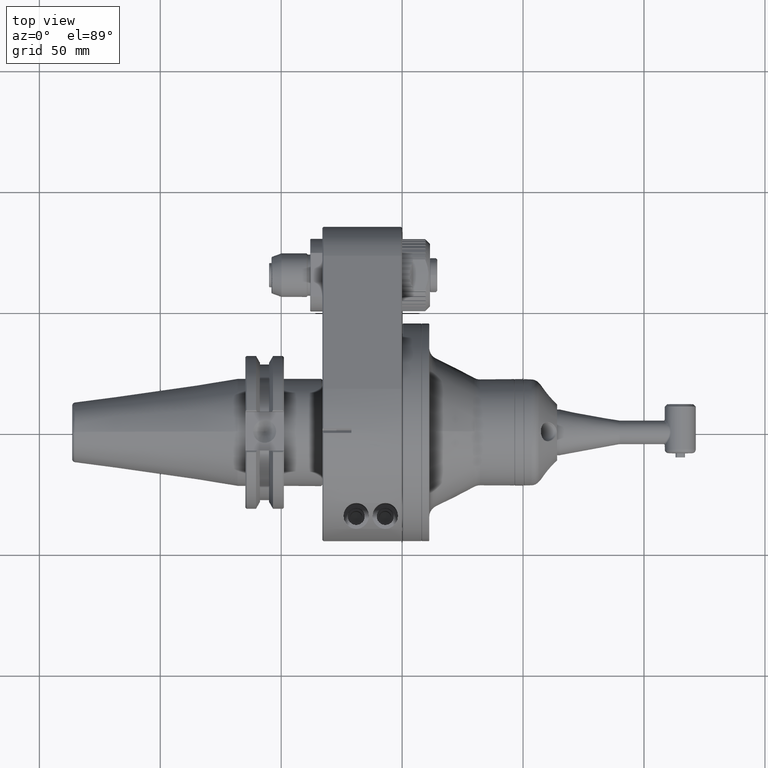
[diagram: clean part render]
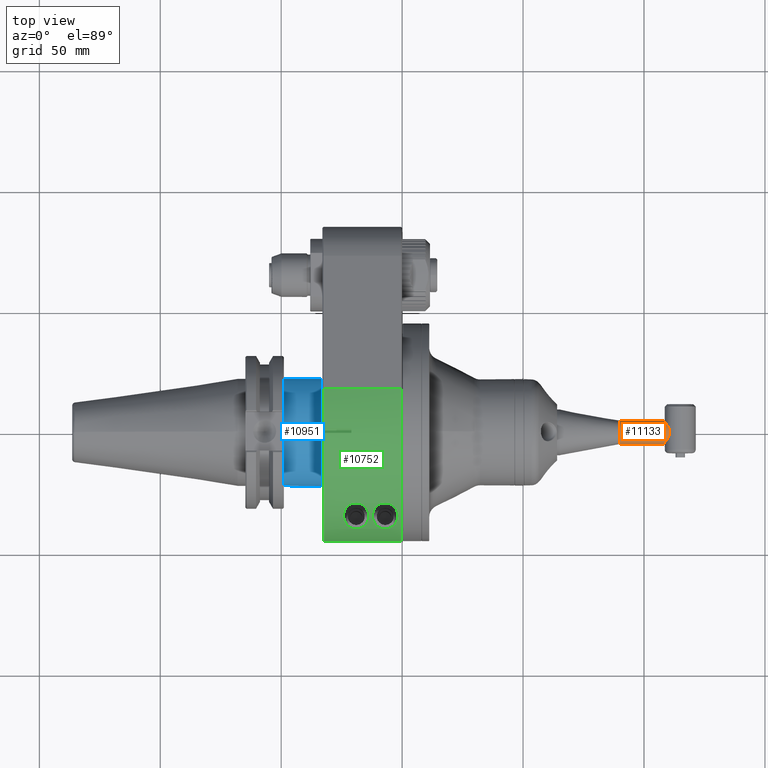
[diagram: same view with three faces highlighted in distinct colors, each labeled with its STEP entity id]
A machine part, top view with three faces highlighted in distinct colors.
Their STEP definitions:

[orange] entity #11133 — the highlighted cylindrical surface (bore or boss wall) has radius 4.85 mm, axis along (1, 0, -0).
#195=B_SPLINE_CURVE_WITH_KNOTS('',3,(#20891,#20892,#20893,#20894,#20895,
#20896,#20897,#20898,#20899,#20900,#20901,#20902,#20903,#20904,#20905,#20906,
#20907,#20908,#20909,#20910,#20911,#20912,#20913,#20914,#20915,#20916,#20917,
#20918,#20919,#20920,#20921,#20922,#20923,#20924,#20925,#20926,#20927,#20928,
#20929,#20930,#20931,#20932,#20933,#20934,#20935,#20936,#20937,#20938,#20939,
#20940,#20941,#20942,#20943,#20944,#20945,#20946,#20947,#20948,#20949,#20950,
#20951,#20952,#20953,#20954,#20955,#20956,#20957,#20958,#20959,#20960,#20961,
#20962,#20963,#20964,#20965,#20966,#20967,#20968,#20969,#20970,#20971,#20972,
#20973,#20974,#20975,#20976,#20977,#20978,#20979,#20980,#20981,#20982,#20983,
#20984,#20985,#20986,#20987,#20988,#20989,#20990,#20991,#20992,#20993,#20994,
#20995,#20996,#20997,#20998,#20999,#21000,#21001,#21002,#21003,#21004,#21005,
#21006,#21007,#21008,#21009,#21010,#21011,#21012,#21013,#21014,#21015,#21016,
#21017,#21018,#21019,#21020,#21021,#21022,#21023,#21024,#21025,#21026,#21027,
#21028,#21029,#21030,#21031,#21032,#21033,#21034,#21035,#21036,#21037,#21038,
#21039,#21040,#21041,#21042,#21043,#21044,#21045,#21046,#21047,#21048,#21049,
#21050,#21051,#21052,#21053,#21054,#21055,#21056,#21057,#21058,#21059,#21060,
#21061,#21062,#21063,#21064,#21065,#21066,#21067,#21068,#21069,#21070,#21071,
#21072,#21073,#21074,#21075,#21076,#21077,#21078,#21079,#21080,#21081,#21082,
#21083,#21084,#21085,#21086,#21087,#21088,#21089,#21090,#21091,#21092,#21093,
#21094,#21095,#21096,#21097,#21098,#21099,#21100,#21101,#21102,#21103,#21104,
#21105,#21106,#21107,#21108,#21109,#21110,#21111,#21112,#21113,#21114,#21115,
#21116,#21117,#21118,#21119,#21120,#21121,#21122),.UNSPECIFIED.,.F.,.F.,
(4,3,3,3,3,3,3,3,3,3,3,3,3,3,3,3,3,3,3,3,3,3,3,3,3,3,3,3,3,3,3,3,3,3,3,
3,3,3,3,3,3,3,3,3,3,3,3,3,3,3,3,3,3,3,3,3,3,3,3,3,3,3,3,3,3,3,3,3,3,3,3,
3,3,3,3,3,3,4),(0.,0.01538461538462,0.03076923076923,0.04615384615385,0.06153846153846,
0.07692307692308,0.09230769230769,0.1076923076923,0.1230769230769,0.1384615384615,
0.1538461538462,0.1692307692308,0.1846153846154,0.2,0.2153846153846,0.2307692307692,
0.2461538461538,0.260158438914003,0.2615384615385,0.274442780658334,0.2769230769231,
0.289194553073426,0.2923076923077,0.304479851039587,0.3076923076923,0.320422578438482,
0.3230769230769,0.337230330382975,0.3384615384615,0.3538461538462,0.3692307692308,
0.3846153846154,0.4,0.4153846153846,0.4307692307692,0.4461538461538,0.4615384615385,
0.4769230769231,0.4923076923077,0.5076923076923,0.5230769230769,0.5384615384615,
0.5538461538462,0.5692307692308,0.5846153846154,0.6,0.6153846153846,0.6307692307692,
0.6461538461538,0.6615384615385,0.675702102305184,0.6769230769231,0.689658797195751,
0.6923076923077,0.704479482115262,0.7076923076923,0.71997338106672,0.7230769230769,
0.735965087058411,0.7384615384615,0.752449438870395,0.7538461538462,0.7692307692308,
0.7846153846154,0.8,0.8153846153846,0.8307692307692,0.8461538461538,0.8615384615385,
0.8769230769231,0.8923076923077,0.9076923076923,0.9230769230769,0.9384615384615,
0.9538461538462,0.9692307692308,0.9846153846154,1.),.UNSPECIFIED.);
#196=B_SPLINE_CURVE_WITH_KNOTS('',3,(#21123,#21124,#21125,#21126,#21127,
#21128,#21129,#21130,#21131,#21132,#21133,#21134,#21135,#21136,#21137,#21138,
#21139,#21140,#21141,#21142,#21143,#21144,#21145,#21146,#21147,#21148,#21149,
#21150,#21151,#21152,#21153,#21154,#21155,#21156,#21157,#21158,#21159,#21160,
#21161,#21162,#21163,#21164,#21165,#21166,#21167,#21168,#21169,#21170,#21171,
#21172,#21173,#21174,#21175,#21176,#21177,#21178,#21179,#21180,#21181,#21182,
#21183,#21184,#21185,#21186,#21187,#21188,#21189,#21190,#21191,#21192,#21193,
#21194,#21195,#21196,#21197,#21198,#21199,#21200,#21201,#21202,#21203,#21204,
#21205,#21206,#21207,#21208,#21209,#21210,#21211,#21212,#21213,#21214,#21215,
#21216,#21217,#21218,#21219,#21220,#21221,#21222,#21223,#21224,#21225,#21226,
#21227,#21228,#21229,#21230,#21231,#21232,#21233,#21234,#21235,#21236,#21237,
#21238,#21239,#21240,#21241,#21242,#21243,#21244,#21245,#21246,#21247,#21248,
#21249,#21250,#21251,#21252,#21253,#21254,#21255,#21256,#21257,#21258,#21259,
#21260,#21261,#21262,#21263,#21264,#21265,#21266,#21267,#21268,#21269,#21270,
#21271,#21272,#21273,#21274,#21275,#21276,#21277,#21278,#21279,#21280,#21281,
#21282,#21283,#21284,#21285,#21286,#21287,#21288,#21289,#21290,#21291,#21292,
#21293,#21294,#21295,#21296,#21297,#21298,#21299,#21300,#21301,#21302,#21303,
#21304,#21305,#21306,#21307,#21308,#21309,#21310,#21311,#21312,#21313,#21314,
#21315,#21316,#21317,#21318,#21319,#21320,#21321,#21322,#21323,#21324,#21325,
#21326,#21327,#21328,#21329,#21330,#21331,#21332,#21333,#21334,#21335,#21336,
#21337,#21338,#21339,#21340,#21341,#21342,#21343,#21344,#21345,#21346,#21347,
#21348,#21349,#21350,#21351,#21352,#21353,#21354),.UNSPECIFIED.,.F.,.F.,
(4,3,3,3,3,3,3,3,3,3,3,3,3,3,3,3,3,3,3,3,3,3,3,3,3,3,3,3,3,3,3,3,3,3,3,
3,3,3,3,3,3,3,3,3,3,3,3,3,3,3,3,3,3,3,3,3,3,3,3,3,3,3,3,3,3,3,3,3,3,3,3,
3,3,3,3,3,3,4),(0.,0.01538461538462,0.03076923076923,0.04615384615385,0.06153846153846,
0.07692307692308,0.09230769230769,0.1076923076923,0.1230769230769,0.1384615384615,
0.1538461538462,0.1692307692308,0.1846153846154,0.2,0.2153846153846,0.2307692307692,
0.2461538461538,0.260158431636471,0.2615384615385,0.274442760630202,0.2769230769231,
0.289194598271344,0.2923076923077,0.304479899083794,0.3076923076923,0.320422274181219,
0.3230769230769,0.337230405142015,0.3384615384615,0.3538461538462,0.3692307692308,
0.3846153846154,0.4,0.4153846153846,0.4307692307692,0.4461538461538,0.4615384615385,
0.4769230769231,0.4923076923077,0.5076923076923,0.5230769230769,0.5384615384615,
0.5538461538462,0.5692307692308,0.5846153846154,0.6,0.6153846153846,0.6307692307692,
0.6461538461538,0.6615384615385,0.675702047880897,0.6769230769231,0.689658777790417,
0.6923076923077,0.704479540780857,0.7076923076923,0.719973348981994,0.7230769230769,
0.735964990526174,0.7384615384615,0.752449503331708,0.7538461538462,0.7692307692308,
0.7846153846154,0.8,0.8153846153846,0.8307692307692,0.8461538461538,0.8615384615385,
0.8769230769231,0.8923076923077,0.9076923076923,0.9230769230769,0.9384615384615,
0.9538461538462,0.9692307692308,0.9846153846154,1.),.UNSPECIFIED.);
#1035=CIRCLE('',#12394,4.85);
#1270=CYLINDRICAL_SURFACE('',#12395,4.85);
#1848=FACE_OUTER_BOUND('',#2567,.T.);
#2567=EDGE_LOOP('',(#9900,#9901,#9902,#9903,#9904));
#3439=LINE('',#21355,#4276);
#4276=VECTOR('',#15536,4.85);
#5282=VERTEX_POINT('',#20886);
#5283=VERTEX_POINT('',#20889);
#5284=VERTEX_POINT('',#20890);
#6858=EDGE_CURVE('',#5282,#5282,#1035,.T.);
#6859=EDGE_CURVE('',#5283,#5284,#195,.T.);
#6860=EDGE_CURVE('',#5284,#5283,#196,.T.);
#6861=EDGE_CURVE('',#5284,#5282,#3439,.T.);
#9900=ORIENTED_EDGE('',*,*,#6859,.F.);
#9901=ORIENTED_EDGE('',*,*,#6860,.F.);
#9902=ORIENTED_EDGE('',*,*,#6861,.T.);
#9903=ORIENTED_EDGE('',*,*,#6858,.F.);
#9904=ORIENTED_EDGE('',*,*,#6861,.F.);
#11133=ADVANCED_FACE('',(#1848),#1270,.T.);
#12394=AXIS2_PLACEMENT_3D('',#20887,#15532,#15533);
#12395=AXIS2_PLACEMENT_3D('',#20888,#15534,#15535);
#15532=DIRECTION('center_axis',(0.,-1.,0.));
#15533=DIRECTION('ref_axis',(-1.,0.,0.));
#15534=DIRECTION('center_axis',(0.,1.,0.));
#15535=DIRECTION('ref_axis',(0.,0.,-1.));
#15536=DIRECTION('',(0.,-1.,0.));
#20886=CARTESIAN_POINT('',(5.93953697586466E-16,114.9,4.85));
#20887=CARTESIAN_POINT('Origin',(0.,114.9,0.));
#20888=CARTESIAN_POINT('Origin',(0.,120.2,0.));
#20889=CARTESIAN_POINT('',(0.,133.1,-4.85));
#20890=CARTESIAN_POINT('',(0.,133.1,4.85));
#20891=CARTESIAN_POINT('Ctrl Pts',(0.,133.1,-4.85));
#20892=CARTESIAN_POINT('Ctrl Pts',(-0.07161185774808,133.1000001042,-4.85));
#20893=CARTESIAN_POINT('Ctrl Pts',(-0.143368031393527,133.1013578575,-4.84841334298735));
#20894=CARTESIAN_POINT('Ctrl Pts',(-0.215174492267225,133.104083957267,
-4.84522444659456));
#20895=CARTESIAN_POINT('Ctrl Pts',(-0.286980953140876,133.106810057033,
-4.84203555020177));
#20896=CARTESIAN_POINT('Ctrl Pts',(-0.358837760061256,133.110904503267,
-4.83724577257871));
#20897=CARTESIAN_POINT('Ctrl Pts',(-0.430741154153564,133.116379485567,
-4.83083450949403));
#20898=CARTESIAN_POINT('Ctrl Pts',(-0.502644548245918,133.121854467867,
-4.82442324640936));
#20899=CARTESIAN_POINT('Ctrl Pts',(-0.57459453063665,133.128709986233,-4.81639063571277));
#20900=CARTESIAN_POINT('Ctrl Pts',(-0.646593330334119,133.13696389515,-4.80670542733455));
#20901=CARTESIAN_POINT('Ctrl Pts',(-0.718592130031542,133.145217804067,
-4.79702021895634));
#20902=CARTESIAN_POINT('Ctrl Pts',(-0.790639792272416,133.154870103533,
-4.78568274561449));
#20903=CARTESIAN_POINT('Ctrl Pts',(-0.862755494920035,133.165948141983,
-4.77264632630423));
#20904=CARTESIAN_POINT('Ctrl Pts',(-0.934871197567701,133.177026180433,
-4.75960990699397));
#20905=CARTESIAN_POINT('Ctrl Pts',(-1.00705490698295,133.189529957867,-4.74487438019626));
#20906=CARTESIAN_POINT('Ctrl Pts',(-1.07930769844282,133.203491596233,-4.72838184711028));
#20907=CARTESIAN_POINT('Ctrl Pts',(-1.15156048990263,133.2174532346,-4.71188931402432));
#20908=CARTESIAN_POINT('Ctrl Pts',(-1.22388237313769,133.2328727339,-4.69363980269841));
#20909=CARTESIAN_POINT('Ctrl Pts',(-1.2962673319943,133.249786896267,-4.67356298812848));
#20910=CARTESIAN_POINT('Ctrl Pts',(-1.36865229085091,133.266701058633,-4.65348617355854));
#20911=CARTESIAN_POINT('Ctrl Pts',(-1.44110032085099,133.285109884067,-4.63158204554287));
#20912=CARTESIAN_POINT('Ctrl Pts',(-1.51359384186183,133.305052732867,-4.60776883989181));
#20913=CARTESIAN_POINT('Ctrl Pts',(-1.58608736287262,133.324995581667,-4.58395563424077));
#20914=CARTESIAN_POINT('Ctrl Pts',(-1.65862636205225,133.346472453833,-4.55823331247208));
#20915=CARTESIAN_POINT('Ctrl Pts',(-1.7311781747427,133.369522419117,-4.5305101398512));
#20916=CARTESIAN_POINT('Ctrl Pts',(-1.80372998743315,133.3925723844,-4.50278696723032));
#20917=CARTESIAN_POINT('Ctrl Pts',(-1.876294586499,133.4171954428,-4.47306287458941));
#20918=CARTESIAN_POINT('Ctrl Pts',(-1.94882079481534,133.443426415667,-4.44123828562433));
#20919=CARTESIAN_POINT('Ctrl Pts',(-2.02134700313216,133.469657388533,-4.40941369665903));
#20920=CARTESIAN_POINT('Ctrl Pts',(-2.09383477161619,133.497496275867,-4.37548850216877));
#20921=CARTESIAN_POINT('Ctrl Pts',(-2.16621082799804,133.526968466834,-4.33935832222508));
#20922=CARTESIAN_POINT('Ctrl Pts',(-2.23858688437943,133.5564406578,-4.30322814228161));
#20923=CARTESIAN_POINT('Ctrl Pts',(-2.31085112935545,133.5875461524,-4.26489278307486));
#20924=CARTESIAN_POINT('Ctrl Pts',(-2.38290270087747,133.62029333945,-4.2242484205064));
#20925=CARTESIAN_POINT('Ctrl Pts',(-2.45495427239949,133.6530405265,-4.18360405793795));
#20926=CARTESIAN_POINT('Ctrl Pts',(-2.52679297942987,133.687429406,-4.14065036006092));
#20927=CARTESIAN_POINT('Ctrl Pts',(-2.59828329782886,133.723440593033,-4.09529289602387));
#20928=CARTESIAN_POINT('Ctrl Pts',(-2.66977361622785,133.759451780067,-4.04993543198683));
#20929=CARTESIAN_POINT('Ctrl Pts',(-2.74091522837158,133.797085274633,-4.00217370847725));
#20930=CARTESIAN_POINT('Ctrl Pts',(-2.81153197543185,133.836280526883,-3.9519347098762));
#20931=CARTESIAN_POINT('Ctrl Pts',(-2.88214872249213,133.875475779133,-3.90169571127514));
#20932=CARTESIAN_POINT('Ctrl Pts',(-2.95224010074726,133.916232789067,-3.84897874131232));
#20933=CARTESIAN_POINT('Ctrl Pts',(-3.02158419093544,133.958433569967,-3.7937486707858));
#20934=CARTESIAN_POINT('Ctrl Pts',(-3.09092828112362,134.000634350867,-3.73851860025928));
#20935=CARTESIAN_POINT('Ctrl Pts',(-3.15952424551999,134.044278902733,-3.68077439349942));
#20936=CARTESIAN_POINT('Ctrl Pts',(-3.22709666122393,134.089169846167,-3.62054514391374));
#20937=CARTESIAN_POINT('Ctrl Pts',(-3.29466907692787,134.1340607896,-3.56031589432806));
#20938=CARTESIAN_POINT('Ctrl Pts',(-3.36121668674719,134.1801981246,-3.49760020716869));
#20939=CARTESIAN_POINT('Ctrl Pts',(-3.42640854177282,134.227282522066,-3.43252450899717));
#20940=CARTESIAN_POINT('Ctrl Pts',(-3.48575259153244,134.270143379838,-3.37328619665103));
#20941=CARTESIAN_POINT('Ctrl Pts',(-3.54397238386394,134.313789014685,-3.31209160023624));
#20942=CARTESIAN_POINT('Ctrl Pts',(-3.60078192306945,134.35790489918,-3.24913366030028));
#20943=CARTESIAN_POINT('Ctrl Pts',(-3.60637997584637,134.362252110109,-3.24292973970144));
#20944=CARTESIAN_POINT('Ctrl Pts',(-3.61196436074446,134.366603887291,-3.2367087292608));
#20945=CARTESIAN_POINT('Ctrl Pts',(-3.61753482159174,134.370959929767,-3.23047083481205));
#20946=CARTESIAN_POINT('Ctrl Pts',(-3.66962310126327,134.411692422999,-3.17214151529676));
#20947=CARTESIAN_POINT('Ctrl Pts',(-3.72049116071822,134.452797862969,-3.11233250747917));
#20948=CARTESIAN_POINT('Ctrl Pts',(-3.76990143950404,134.493962568554,-3.05128548917097));
#20949=CARTESIAN_POINT('Ctrl Pts',(-3.7793984248758,134.501874699722,-3.03955184479355));
#20950=CARTESIAN_POINT('Ctrl Pts',(-3.78884166896479,134.509789020363,-3.0277725684321));
#20951=CARTESIAN_POINT('Ctrl Pts',(-3.79822965092444,134.5177033031,-3.01594952193142));
#20952=CARTESIAN_POINT('Ctrl Pts',(-3.84467748796477,134.556859888238,-2.95745399653056));
#20953=CARTESIAN_POINT('Ctrl Pts',(-3.8897696059441,134.596015545549,-2.89788403221456));
#20954=CARTESIAN_POINT('Ctrl Pts',(-3.933313891563,134.634860240751,-2.83752389072542));
#20955=CARTESIAN_POINT('Ctrl Pts',(-3.9443606003964,134.644714714915,-2.82221118324391));
#20956=CARTESIAN_POINT('Ctrl Pts',(-3.95530790856184,134.654549176137,-2.80684777108298));
#20957=CARTESIAN_POINT('Ctrl Pts',(-3.96615312368793,134.6643585625,-2.79143858959147));
#20958=CARTESIAN_POINT('Ctrl Pts',(-4.00855716348895,134.702712583598,-2.73118975748716));
#20959=CARTESIAN_POINT('Ctrl Pts',(-4.04939727453135,134.740683271338,-2.67023866681919));
#20960=CARTESIAN_POINT('Ctrl Pts',(-4.08853188163589,134.77796709673,-2.60890916914462));
#20961=CARTESIAN_POINT('Ctrl Pts',(-4.09886022451356,134.78780698426,-2.59272318626747));
#20962=CARTESIAN_POINT('Ctrl Pts',(-4.10907002509522,134.797599029821,-2.57651097530154));
#20963=CARTESIAN_POINT('Ctrl Pts',(-4.1191592236359,134.807337653733,-2.56027875246725));
#20964=CARTESIAN_POINT('Ctrl Pts',(-4.15914053480049,134.845929713489,-2.49595396498153));
#20965=CARTESIAN_POINT('Ctrl Pts',(-4.19722449144042,134.883682858149,-2.43131299501783));
#20966=CARTESIAN_POINT('Ctrl Pts',(-4.23333629793002,134.920304009993,-2.36672004863866));
#20967=CARTESIAN_POINT('Ctrl Pts',(-4.24086584556105,134.927939759459,-2.35325199722642));
#20968=CARTESIAN_POINT('Ctrl Pts',(-4.24830982643351,134.935526295565,-2.33978608869202));
#20969=CARTESIAN_POINT('Ctrl Pts',(-4.25566783414107,134.943060961617,-2.32632570493839));
#20970=CARTESIAN_POINT('Ctrl Pts',(-4.29490195564096,134.983237054802,-2.25455269889995));
#20971=CARTESIAN_POINT('Ctrl Pts',(-4.33168781040951,135.021938378656,-2.1829360100199));
#20972=CARTESIAN_POINT('Ctrl Pts',(-4.36605429776292,135.058890127896,-2.11188775009136));
#20973=CARTESIAN_POINT('Ctrl Pts',(-4.36904384621193,135.062104568857,-2.1057072460122));
#20974=CARTESIAN_POINT('Ctrl Pts',(-4.37201511905776,135.065305770264,-2.09953104480939));
#20975=CARTESIAN_POINT('Ctrl Pts',(-4.37496815371306,135.068493551216,-2.09335941825491));
#20976=CARTESIAN_POINT('Ctrl Pts',(-4.41186792978013,135.1083266101,-2.01624158375177));
#20977=CARTESIAN_POINT('Ctrl Pts',(-4.44591742696967,135.1460642177,-1.93983943660637));
#20978=CARTESIAN_POINT('Ctrl Pts',(-4.47728788978575,135.181533569134,-1.8645088232502));
#20979=CARTESIAN_POINT('Ctrl Pts',(-4.50865835260163,135.217002920567,-1.78917820989452));
#20980=CARTESIAN_POINT('Ctrl Pts',(-4.53735258005193,135.250204015833,-1.71492031548042));
#20981=CARTESIAN_POINT('Ctrl Pts',(-4.56361960864863,135.281114728067,-1.64191232030145));
#20982=CARTESIAN_POINT('Ctrl Pts',(-4.58988663724533,135.3120254403,-1.56890432512249));
#20983=CARTESIAN_POINT('Ctrl Pts',(-4.61372829825292,135.3406457695,-1.49714690744443));
#20984=CARTESIAN_POINT('Ctrl Pts',(-4.63541971760306,135.36705455415,-1.42666886194968));
#20985=CARTESIAN_POINT('Ctrl Pts',(-4.65711113695319,135.3934633388,-1.35619081645494));
#20986=CARTESIAN_POINT('Ctrl Pts',(-4.67665323064643,135.4176605789,-1.28699243932592));
#20987=CARTESIAN_POINT('Ctrl Pts',(-4.69430970279334,135.439777114383,-1.21899811905529));
#20988=CARTESIAN_POINT('Ctrl Pts',(-4.71196617494025,135.461893649867,-1.15100379878466));
#20989=CARTESIAN_POINT('Ctrl Pts',(-4.72773727923914,135.481929480733,-1.08421360887164));
#20990=CARTESIAN_POINT('Ctrl Pts',(-4.74185396368543,135.500030277367,-1.01848956159638));
#20991=CARTESIAN_POINT('Ctrl Pts',(-4.75597064813171,135.518131074,-0.952765514321129));
#20992=CARTESIAN_POINT('Ctrl Pts',(-4.76843285297271,135.5342968364,-0.888107599744449));
#20993=CARTESIAN_POINT('Ctrl Pts',(-4.77943091968729,135.548665859733,-0.824342212880708));
#20994=CARTESIAN_POINT('Ctrl Pts',(-4.79042898640187,135.563034883067,-0.760576826016967));
#20995=CARTESIAN_POINT('Ctrl Pts',(-4.79996271644838,135.575607167333,-0.69770393366836));
#20996=CARTESIAN_POINT('Ctrl Pts',(-4.80818041024244,135.586500770683,-0.635532172718893));
#20997=CARTESIAN_POINT('Ctrl Pts',(-4.81639810403656,135.597394374033,-0.573360411769022));
#20998=CARTESIAN_POINT('Ctrl Pts',(-4.82329953372581,135.606609296467,-0.511889751853464));
#20999=CARTESIAN_POINT('Ctrl Pts',(-4.82899260596585,135.61423680185,-0.450921735478751));
#21000=CARTESIAN_POINT('Ctrl Pts',(-4.83468567820585,135.621864307233,-0.389953719104435));
#21001=CARTESIAN_POINT('Ctrl Pts',(-4.83917020777035,135.627904395567,-0.32948832817836));
#21002=CARTESIAN_POINT('Ctrl Pts',(-4.84251630914182,135.632418751,-0.269324703091792));
#21003=CARTESIAN_POINT('Ctrl Pts',(-4.84586241051329,135.636933106433,-0.209161078005224));
#21004=CARTESIAN_POINT('Ctrl Pts',(-4.84806996484165,135.639921728967,-0.149299211235721));
#21005=CARTESIAN_POINT('Ctrl Pts',(-4.84917343206287,135.641415615233,-0.0895378454932703));
#21006=CARTESIAN_POINT('Ctrl Pts',(-4.8502768992841,135.6429095015,-0.0297764797508202));
#21007=CARTESIAN_POINT('Ctrl Pts',(-4.850276237934,135.6429086515,0.0298843867536374));
#21008=CARTESIAN_POINT('Ctrl Pts',(-4.84917143540379,135.641413042867,0.0896459149319333));
#21009=CARTESIAN_POINT('Ctrl Pts',(-4.84806663287357,135.639917434233,0.149407443110229));
#21010=CARTESIAN_POINT('Ctrl Pts',(-4.84585773094497,135.636927066967,0.209269634708006));
#21011=CARTESIAN_POINT('Ctrl Pts',(-4.84251024210262,135.6324109007,0.269433767614952));
#21012=CARTESIAN_POINT('Ctrl Pts',(-4.83916275326027,135.627894734433,0.329597900521898));
#21013=CARTESIAN_POINT('Ctrl Pts',(-4.83467679393104,135.621852769167,0.390063982178279));
#21014=CARTESIAN_POINT('Ctrl Pts',(-4.82898224340889,135.614223325183,0.451032695978474));
#21015=CARTESIAN_POINT('Ctrl Pts',(-4.82328769288671,135.6065938812,0.512001409779064));
#21016=CARTESIAN_POINT('Ctrl Pts',(-4.81638473993658,135.5973769585,0.573472774122686));
#21017=CARTESIAN_POINT('Ctrl Pts',(-4.80816544960452,135.586481282767,0.63564534862562));
#21018=CARTESIAN_POINT('Ctrl Pts',(-4.79994615927251,135.575585607033,0.69781792312815));
#21019=CARTESIAN_POINT('Ctrl Pts',(-4.7904107524497,135.563011178267,0.760691737118967));
#21020=CARTESIAN_POINT('Ctrl Pts',(-4.7794109947517,135.548640048383,0.824457726779569));
#21021=CARTESIAN_POINT('Ctrl Pts',(-4.7684112370537,135.5342689185,0.888223716440171));
#21022=CARTESIAN_POINT('Ctrl Pts',(-4.75594732196756,135.5181010875,0.952881914282058));
#21023=CARTESIAN_POINT('Ctrl Pts',(-4.74182912750898,135.499998561467,1.01860518627551));
#21024=CARTESIAN_POINT('Ctrl Pts',(-4.72771093305041,135.481896035433,1.08432845826897));
#21025=CARTESIAN_POINT('Ctrl Pts',(-4.71193852321312,135.461858814367,1.15111681512029));
#21026=CARTESIAN_POINT('Ctrl Pts',(-4.69428119452825,135.439741479583,1.21910789789027));
#21027=CARTESIAN_POINT('Ctrl Pts',(-4.67662386584338,135.4176241448,1.28709898066025));
#21028=CARTESIAN_POINT('Ctrl Pts',(-4.65708135883969,135.3934266963,1.35629271471589));
#21029=CARTESIAN_POINT('Ctrl Pts',(-4.63539041016742,135.3670188449,1.42676408187476));
#21030=CARTESIAN_POINT('Ctrl Pts',(-4.61369946149515,135.3406109935,1.49723544903362));
#21031=CARTESIAN_POINT('Ctrl Pts',(-4.58985918636342,135.3119927392,1.56898416267849));
#21032=CARTESIAN_POINT('Ctrl Pts',(-4.56359423868308,135.281084929317,1.64198283324115));
#21033=CARTESIAN_POINT('Ctrl Pts',(-4.53732929100273,135.250177119433,1.71498150380381));
#21034=CARTESIAN_POINT('Ctrl Pts',(-4.50863782924738,135.216979753967,1.78922944867883));
#21035=CARTESIAN_POINT('Ctrl Pts',(-4.47727070498145,135.181514483,1.86455008897988));
#21036=CARTESIAN_POINT('Ctrl Pts',(-4.44590358071532,135.146049212033,1.93987072928142));
#21037=CARTESIAN_POINT('Ctrl Pts',(-4.41185798803565,135.108316035567,2.01626287748583));
#21038=CARTESIAN_POINT('Ctrl Pts',(-4.37496269684864,135.068487753283,2.09337082266445));
#21039=CARTESIAN_POINT('Ctrl Pts',(-4.34099553957576,135.031820376913,2.16435922298892));
#21040=CARTESIAN_POINT('Ctrl Pts',(-4.30461098963234,134.993377247849,2.23595298813035));
#21041=CARTESIAN_POINT('Ctrl Pts',(-4.26577518637643,134.953433394914,2.30773959954218));
#21042=CARTESIAN_POINT('Ctrl Pts',(-4.26242735153489,134.949990040809,2.31392795406796));
#21043=CARTESIAN_POINT('Ctrl Pts',(-4.25906133287961,134.946535534408,2.32011774348234));
#21044=CARTESIAN_POINT('Ctrl Pts',(-4.25567712705303,134.9430700519,2.32630870485361));
#21045=CARTESIAN_POINT('Ctrl Pts',(-4.22037721326293,134.906922358745,2.3908852743304));
#21046=CARTESIAN_POINT('Ctrl Pts',(-4.18309418205117,134.869580451646,2.45558857762751));
#21047=CARTESIAN_POINT('Ctrl Pts',(-4.14389223733309,134.831337548197,2.5200510164222));
#21048=CARTESIAN_POINT('Ctrl Pts',(-4.13573864746777,134.823383428772,2.53345852187709));
#21049=CARTESIAN_POINT('Ctrl Pts',(-4.12750221767912,134.815390332605,2.54685566115782));
#21050=CARTESIAN_POINT('Ctrl Pts',(-4.11918379637747,134.807360897933,2.56023921766332));
#21051=CARTESIAN_POINT('Ctrl Pts',(-4.08096028380514,134.770465291664,2.62173724977779));
#21052=CARTESIAN_POINT('Ctrl Pts',(-4.04100147051386,134.732802418572,2.68294728536781));
#21053=CARTESIAN_POINT('Ctrl Pts',(-3.99943655256493,134.694675571152,2.74353918543322));
#21054=CARTESIAN_POINT('Ctrl Pts',(-3.98846521362422,134.684611733993,2.75953282395058));
#21055=CARTESIAN_POINT('Ctrl Pts',(-3.97738222440357,134.674515570283,2.77548351970757));
#21056=CARTESIAN_POINT('Ctrl Pts',(-3.96619049968857,134.664392657783,2.79138548398105));
#21057=CARTESIAN_POINT('Ctrl Pts',(-3.92340996613159,134.625697674755,2.8521709780445));
#21058=CARTESIAN_POINT('Ctrl Pts',(-3.87903681473859,134.586611848575,2.9122428611591));
#21059=CARTESIAN_POINT('Ctrl Pts',(-3.8332520161296,134.547445472292,2.97130930413485));
#21060=CARTESIAN_POINT('Ctrl Pts',(-3.82168176965533,134.53754776299,2.98623594625956));
#21061=CARTESIAN_POINT('Ctrl Pts',(-3.81002158776155,134.527644909596,3.00109852437444));
#21062=CARTESIAN_POINT('Ctrl Pts',(-3.79827482130899,134.517741919783,3.0158926343307));
#21063=CARTESIAN_POINT('Ctrl Pts',(-3.74949370225325,134.476617502523,3.07732854028954));
#21064=CARTESIAN_POINT('Ctrl Pts',(-3.69921590121627,134.435490732701,3.13758163803564));
#21065=CARTESIAN_POINT('Ctrl Pts',(-3.64767136425256,134.394674954947,3.19640323151067));
#21066=CARTESIAN_POINT('Ctrl Pts',(-3.63768713129206,134.386768894333,3.20779703824476));
#21067=CARTESIAN_POINT('Ctrl Pts',(-3.62765548651939,134.378874502176,3.2191372402393));
#21068=CARTESIAN_POINT('Ctrl Pts',(-3.61757826529603,134.370994055767,3.23042218517298));
#21069=CARTESIAN_POINT('Ctrl Pts',(-3.56111445162179,134.326839020579,3.29365301180028));
#21070=CARTESIAN_POINT('Ctrl Pts',(-3.5032166933622,134.283121810471,3.35514631920902));
#21071=CARTESIAN_POINT('Ctrl Pts',(-3.44416758248788,134.240156468812,3.41470491605638));
#21072=CARTESIAN_POINT('Ctrl Pts',(-3.43827143116744,134.235866308432,3.42065194039333));
#21073=CARTESIAN_POINT('Ctrl Pts',(-3.43236382680864,134.231583644445,3.4265797087753));
#21074=CARTESIAN_POINT('Ctrl Pts',(-3.42644506786695,134.2273087895,3.43248804759613));
#21075=CARTESIAN_POINT('Ctrl Pts',(-3.36125078596304,134.180221874633,3.4975675533614));
#21076=CARTESIAN_POINT('Ctrl Pts',(-3.29470101263377,134.134082407867,3.56028642302361));
#21077=CARTESIAN_POINT('Ctrl Pts',(-3.22712669364617,134.0891896403,3.62051837492317));
#21078=CARTESIAN_POINT('Ctrl Pts',(-3.15955237465857,134.044296872733,3.68075032682273));
#21079=CARTESIAN_POINT('Ctrl Pts',(-3.09095476737893,134.000650804367,3.73849675531897));
#21080=CARTESIAN_POINT('Ctrl Pts',(-3.02160927782547,133.958448741467,3.79372868984579));
#21081=CARTESIAN_POINT('Ctrl Pts',(-2.952263788272,133.916246678567,3.84896062437261));
#21082=CARTESIAN_POINT('Ctrl Pts',(-2.88217125393324,133.875488621133,3.90167910057267));
#21083=CARTESIAN_POINT('Ctrl Pts',(-2.81155356423129,133.83629249015,3.9519193508292));
#21084=CARTESIAN_POINT('Ctrl Pts',(-2.74093587452933,133.797096359167,4.00215960108574));
#21085=CARTESIAN_POINT('Ctrl Pts',(-2.66979353581342,133.759462154633,4.04992232519094));
#21086=CARTESIAN_POINT('Ctrl Pts',(-2.59830243815486,133.723450266033,4.09528075226577));
#21087=CARTESIAN_POINT('Ctrl Pts',(-2.52681134049629,133.687438377433,4.14063917934061));
#21088=CARTESIAN_POINT('Ctrl Pts',(-2.45497179834017,133.653048804767,4.1835937974823));
#21089=CARTESIAN_POINT('Ctrl Pts',(-2.38291933501112,133.620300944333,4.22423903713203));
#21090=CARTESIAN_POINT('Ctrl Pts',(-2.31086687168207,133.5875530839,4.26488427678176));
#21091=CARTESIAN_POINT('Ctrl Pts',(-2.23860167679388,133.5564469357,4.30322046766049));
#21092=CARTESIAN_POINT('Ctrl Pts',(-2.1662247564556,133.52697416675,4.33935136910102));
#21093=CARTESIAN_POINT('Ctrl Pts',(-2.09384783611684,133.4975013978,4.37548227054178));
#21094=CARTESIAN_POINT('Ctrl Pts',(-2.02135929127335,133.4696620081,4.40940807967653));
#21095=CARTESIAN_POINT('Ctrl Pts',(-1.94883234379303,133.443430581067,4.44123321790088));
#21096=CARTESIAN_POINT('Ctrl Pts',(-1.87630539631318,133.417199154033,4.47305835612501));
#21097=CARTESIAN_POINT('Ctrl Pts',(-1.80374009519779,133.392575689667,4.50278293222492));
#21098=CARTESIAN_POINT('Ctrl Pts',(-1.73118758276072,133.369525359367,4.53050654489044));
#21099=CARTESIAN_POINT('Ctrl Pts',(-1.65863507032365,133.346475029067,4.55823015755596));
#21100=CARTESIAN_POINT('Ctrl Pts',(-1.58609537295394,133.324997832833,4.5839528742053));
#21101=CARTESIAN_POINT('Ctrl Pts',(-1.51360123218138,133.30505471745,4.60776641225865));
#21102=CARTESIAN_POINT('Ctrl Pts',(-1.44110709140883,133.285111602067,4.631579950312));
#21103=CARTESIAN_POINT('Ctrl Pts',(-1.36865852105629,133.266702567533,4.65348435111728));
#21104=CARTESIAN_POINT('Ctrl Pts',(-1.29627299256577,133.2497882109,4.67356141809911));
#21105=CARTESIAN_POINT('Ctrl Pts',(-1.22388746407525,133.232873854267,4.69363848508094));
#21106=CARTESIAN_POINT('Ctrl Pts',(-1.15156498093301,133.217454175533,4.71188822484495));
#21107=CARTESIAN_POINT('Ctrl Pts',(-1.07931168228997,133.203492383233,4.72838093774945));
#21108=CARTESIAN_POINT('Ctrl Pts',(-1.00705838364692,133.189530590933,4.74487365065396));
#21109=CARTESIAN_POINT('Ctrl Pts',(-0.934874260291918,133.177026685067,
4.75960931106164));
#21110=CARTESIAN_POINT('Ctrl Pts',(-0.862758204481005,133.165948551817,
4.77264583649371));
#21111=CARTESIAN_POINT('Ctrl Pts',(-0.790642148669624,133.154870418567,
4.78568236192585));
#21112=CARTESIAN_POINT('Ctrl Pts',(-0.718594193804223,133.145218057933,
4.79701991256105));
#21113=CARTESIAN_POINT('Ctrl Pts',(-0.646595217441969,133.136964106567,
4.80670517348227));
#21114=CARTESIAN_POINT('Ctrl Pts',(-0.57459624108018,133.1287101552,4.81639043440342));
#21115=CARTESIAN_POINT('Ctrl Pts',(-0.50264619838435,133.1218546131,4.82442307600383));
#21116=CARTESIAN_POINT('Ctrl Pts',(-0.430742705266291,133.11637960305,4.83083437118888));
#21117=CARTESIAN_POINT('Ctrl Pts',(-0.358839212148233,133.110904593,4.83724566637393));
#21118=CARTESIAN_POINT('Ctrl Pts',(-0.286982267434212,133.106810115,4.84203547603618));
#21119=CARTESIAN_POINT('Ctrl Pts',(-0.215175556169219,133.104083992925,
4.84522439934698));
#21120=CARTESIAN_POINT('Ctrl Pts',(-0.143368844904225,133.10135787085,4.84841332265777));
#21121=CARTESIAN_POINT('Ctrl Pts',(-0.0716123081703096,133.1000001047,4.85));
#21122=CARTESIAN_POINT('Ctrl Pts',(-5.93953697586466E-16,133.1,4.85));
#21123=CARTESIAN_POINT('Ctrl Pts',(5.93953697586466E-16,133.1,4.85));
#21124=CARTESIAN_POINT('Ctrl Pts',(0.0716118597529515,133.1000001042,4.85));
#21125=CARTESIAN_POINT('Ctrl Pts',(0.143368035295013,133.1013578576,4.84841334289836));
#21126=CARTESIAN_POINT('Ctrl Pts',(0.21517449794274,133.1040839575,4.84522444634251));
#21127=CARTESIAN_POINT('Ctrl Pts',(0.286980960590422,133.1068100574,4.84203554978666));
#21128=CARTESIAN_POINT('Ctrl Pts',(0.358837769162309,133.1109045038,4.83724577192703));
#21129=CARTESIAN_POINT('Ctrl Pts',(0.430741164806593,133.11637948635,4.83083450854416));
#21130=CARTESIAN_POINT('Ctrl Pts',(0.50264456045092,133.1218544689,4.82442324516127));
#21131=CARTESIAN_POINT('Ctrl Pts',(0.574594544294227,133.1287099876,4.81639063410693));
#21132=CARTESIAN_POINT('Ctrl Pts',(0.646593345505601,133.1369638969,4.8067054252937));
#21133=CARTESIAN_POINT('Ctrl Pts',(0.718592146716927,133.1452178062,4.79702021648047));
#21134=CARTESIAN_POINT('Ctrl Pts',(0.790639810532563,133.1548701061,4.78568274262292));
#21135=CARTESIAN_POINT('Ctrl Pts',(0.8627555147445,133.16594814505,4.77264632272055));
#21136=CARTESIAN_POINT('Ctrl Pts',(0.934871218956484,133.177026184,4.75960990281816));
#21137=CARTESIAN_POINT('Ctrl Pts',(1.00705492992591,133.189529962,4.74487437535322));
#21138=CARTESIAN_POINT('Ctrl Pts',(1.07930772294672,133.203491601,4.72838184151699));
#21139=CARTESIAN_POINT('Ctrl Pts',(1.15156051596749,133.21745324,4.71188930768077));
#21140=CARTESIAN_POINT('Ctrl Pts',(1.22388240077016,133.23287274,4.69363979552125));
#21141=CARTESIAN_POINT('Ctrl Pts',(1.29626736119322,133.249786903117,4.67356298002981));
#21142=CARTESIAN_POINT('Ctrl Pts',(1.36865232161629,133.266701066233,4.65348616453837));
#21143=CARTESIAN_POINT('Ctrl Pts',(1.44110035318173,133.285109892467,4.63158203551345));
#21144=CARTESIAN_POINT('Ctrl Pts',(1.51359387575726,133.305052742167,4.60776882875759));
#21145=CARTESIAN_POINT('Ctrl Pts',(1.58608739833274,133.324995591867,4.58395562200175));
#21146=CARTESIAN_POINT('Ctrl Pts',(1.65862639907632,133.346472465033,4.5582332990326));
#21147=CARTESIAN_POINT('Ctrl Pts',(1.73117821332058,133.369522431367,4.53051012510999));
#21148=CARTESIAN_POINT('Ctrl Pts',(1.80373002756484,133.3925723977,4.50278695118739));
#21149=CARTESIAN_POINT('Ctrl Pts',(1.87629462817442,133.4171954572,4.47306285714362));
#21150=CARTESIAN_POINT('Ctrl Pts',(1.9488208380225,133.443426431267,4.44123826666497));
#21151=CARTESIAN_POINT('Ctrl Pts',(2.02134704787105,133.469657405333,4.40941367618611));
#21152=CARTESIAN_POINT('Ctrl Pts',(2.09383481787482,133.497496293967,4.37548848007169));
#21153=CARTESIAN_POINT('Ctrl Pts',(2.16621087576598,133.5269684863,4.33935829837929));
#21154=CARTESIAN_POINT('Ctrl Pts',(2.23858693365667,133.556440678634,4.30322811668711));
#21155=CARTESIAN_POINT('Ctrl Pts',(2.3108511801312,133.587546174667,4.26489275560632));
#21156=CARTESIAN_POINT('Ctrl Pts',(2.38290275309662,133.620293363217,4.22424839104953));
#21157=CARTESIAN_POINT('Ctrl Pts',(2.45495432606204,133.653040551767,4.18360402649274));
#21158=CARTESIAN_POINT('Ctrl Pts',(2.52679303448101,133.687429432833,4.14065032651361));
#21159=CARTESIAN_POINT('Ctrl Pts',(2.59828335420235,133.723440621467,4.09529286025737));
#21160=CARTESIAN_POINT('Ctrl Pts',(2.6697736739237,133.7594518101,4.04993539400112));
#21161=CARTESIAN_POINT('Ctrl Pts',(2.7409152873237,133.7970853063,4.00217366815536));
#21162=CARTESIAN_POINT('Ctrl Pts',(2.81153203557068,133.83628056025,3.95193466709152));
#21163=CARTESIAN_POINT('Ctrl Pts',(2.88214878381766,133.8754758142,3.90169566602769));
#21164=CARTESIAN_POINT('Ctrl Pts',(2.95224016319075,133.9162328259,3.84897869347693));
#21165=CARTESIAN_POINT('Ctrl Pts',(3.02158425448992,133.958433608633,3.79374862016694));
#21166=CARTESIAN_POINT('Ctrl Pts',(3.09092834578909,134.000634391367,3.73851854685696));
#21167=CARTESIAN_POINT('Ctrl Pts',(3.15952431128498,134.044278945133,3.68077433711216));
#21168=CARTESIAN_POINT('Ctrl Pts',(3.22709672783759,134.0891698904,3.62054508453906));
#21169=CARTESIAN_POINT('Ctrl Pts',(3.29466914439019,134.134060835667,3.56031583196596));
#21170=CARTESIAN_POINT('Ctrl Pts',(3.36121675481722,134.180198172433,3.49760014182775));
#21171=CARTESIAN_POINT('Ctrl Pts',(3.42640861054918,134.227282571783,3.43252444034336));
#21172=CARTESIAN_POINT('Ctrl Pts',(3.48575263011342,134.270143408997,3.37328615576491));
#21173=CARTESIAN_POINT('Ctrl Pts',(3.54397239348991,134.313789022566,3.31209158886663));
#21174=CARTESIAN_POINT('Ctrl Pts',(3.60078190505458,134.357904885279,3.24913368026486));
#21175=CARTESIAN_POINT('Ctrl Pts',(3.60637998753806,134.362252119245,3.24292972681353));
#21176=CARTESIAN_POINT('Ctrl Pts',(3.61196440199712,134.366603919512,3.23670868334003));
#21177=CARTESIAN_POINT('Ctrl Pts',(3.61753489225541,134.370959985117,3.2304707556817));
#21178=CARTESIAN_POINT('Ctrl Pts',(3.66962309141301,134.411692416598,3.17214152375908));
#21179=CARTESIAN_POINT('Ctrl Pts',(3.7204910738623,134.452797793484,3.11233260823521));
#21180=CARTESIAN_POINT('Ctrl Pts',(3.7699012792694,134.493962435177,3.05128568714287));
#21181=CARTESIAN_POINT('Ctrl Pts',(3.77939834196422,134.501874630233,3.03955194849186));
#21182=CARTESIAN_POINT('Ctrl Pts',(3.78884166247551,134.509789014776,3.02777257715993));
#21183=CARTESIAN_POINT('Ctrl Pts',(3.79822971991393,134.517703361367,3.01594943504737));
#21184=CARTESIAN_POINT('Ctrl Pts',(3.84467772640565,134.556860090459,2.95745369349498));
#21185=CARTESIAN_POINT('Ctrl Pts',(3.88977000262708,134.596015890552,2.89788350673857));
#21186=CARTESIAN_POINT('Ctrl Pts',(3.93331443574885,134.634860726203,2.83752313638668));
#21187=CARTESIAN_POINT('Ctrl Pts',(3.94436098093432,134.64471505663,2.82221064956111));
#21188=CARTESIAN_POINT('Ctrl Pts',(3.95530812837983,134.654549374693,2.80684745948876));
#21189=CARTESIAN_POINT('Ctrl Pts',(3.96615318586719,134.664358618733,2.79143850124547));
#21190=CARTESIAN_POINT('Ctrl Pts',(4.00855739232326,134.702712791587,2.73118942950168));
#21191=CARTESIAN_POINT('Ctrl Pts',(4.04939765946416,134.740683629704,2.67023809109593));
#21192=CARTESIAN_POINT('Ctrl Pts',(4.08853241252179,134.777967602449,2.60890833717069));
#21193=CARTESIAN_POINT('Ctrl Pts',(4.09886059868612,134.787807342868,2.59272259262238));
#21194=CARTESIAN_POINT('Ctrl Pts',(4.10907024633005,134.797599242916,2.57651062038404));
#21195=CARTESIAN_POINT('Ctrl Pts',(4.11915929583103,134.8073377232,2.56027863631458));
#21196=CARTESIAN_POINT('Ctrl Pts',(4.15913965876255,134.845928868592,2.49595537036837));
#21197=CARTESIAN_POINT('Ctrl Pts',(4.19722276226273,134.883681143486,2.43131592804844));
#21198=CARTESIAN_POINT('Ctrl Pts',(4.23333380187046,134.92030147802,2.36672451331814));
#21199=CARTESIAN_POINT('Ctrl Pts',(4.24086423264575,134.927938114826,2.35325491558325));
#21200=CARTESIAN_POINT('Ctrl Pts',(4.24830907670167,134.935525526918,2.3397874614973));
#21201=CARTESIAN_POINT('Ctrl Pts',(4.25566792738772,134.943061056567,2.32632553435745));
#21202=CARTESIAN_POINT('Ctrl Pts',(4.29490225377054,134.983237361581,2.2545521466806));
#21203=CARTESIAN_POINT('Ctrl Pts',(4.33168827364447,135.021938867592,2.18293510341579));
#21204=CARTESIAN_POINT('Ctrl Pts',(4.36605489287229,135.058890768844,2.1118865197794));
#21205=CARTESIAN_POINT('Ctrl Pts',(4.36904425547682,135.062105010869,2.10570639546691));
#21206=CARTESIAN_POINT('Ctrl Pts',(4.37201534463915,135.065306014859,2.09953057369433));
#21207=CARTESIAN_POINT('Ctrl Pts',(4.37496819776874,135.06849359995,2.09335932618175));
#21208=CARTESIAN_POINT('Ctrl Pts',(4.41186794612843,135.1083266301,2.01624154541653));
#21209=CARTESIAN_POINT('Ctrl Pts',(4.44591740727142,135.1460641973,1.93983947846558));
#21210=CARTESIAN_POINT('Ctrl Pts',(4.47728784197788,135.181533515567,1.86450893805235));
#21211=CARTESIAN_POINT('Ctrl Pts',(4.50865827668413,135.217002833833,1.78917839763961));
#21212=CARTESIAN_POINT('Ctrl Pts',(4.53735248356194,135.250203903167,1.71492056875935));
#21213=CARTESIAN_POINT('Ctrl Pts',(4.56361950182967,135.281114601483,1.6419126171998));
#21214=CARTESIAN_POINT('Ctrl Pts',(4.5898865200974,135.3120252998,1.56890466564026));
#21215=CARTESIAN_POINT('Ctrl Pts',(4.61372818061673,135.3406456271,1.49714726951425));
#21216=CARTESIAN_POINT('Ctrl Pts',(4.63541960295907,135.367054414317,1.4266692344418));
#21217=CARTESIAN_POINT('Ctrl Pts',(4.65711102530142,135.393463201533,1.35619119936936));
#21218=CARTESIAN_POINT('Ctrl Pts',(4.67665312558137,135.417660448667,1.28699282156428));
#21219=CARTESIAN_POINT('Ctrl Pts',(4.69430960526203,135.439776992667,1.21899849464413));
#21220=CARTESIAN_POINT('Ctrl Pts',(4.71196608494268,135.461893536667,1.15100416772398));
#21221=CARTESIAN_POINT('Ctrl Pts',(4.72773719771318,135.481929377533,1.08421396518742));
#21222=CARTESIAN_POINT('Ctrl Pts',(4.74185388971074,135.500030183233,1.01848990600552));
#21223=CARTESIAN_POINT('Ctrl Pts',(4.7559705817083,135.518130988933,0.952765846823612));
#21224=CARTESIAN_POINT('Ctrl Pts',(4.7684327932524,135.534296759467,0.888107921071179));
#21225=CARTESIAN_POINT('Ctrl Pts',(4.77943086571884,135.548665789917,0.824342525782866));
#21226=CARTESIAN_POINT('Ctrl Pts',(4.79042893818528,135.563034820367,0.760577130494553));
#21227=CARTESIAN_POINT('Ctrl Pts',(4.79996267308928,135.575607110733,0.697704232483714));
#21228=CARTESIAN_POINT('Ctrl Pts',(4.80818037143724,135.586500719967,0.635532466303355));
#21229=CARTESIAN_POINT('Ctrl Pts',(4.81639806978525,135.5973943292,0.573360700122592));
#21230=CARTESIAN_POINT('Ctrl Pts',(4.82329950369128,135.6066092573,0.511890035403382));
#21231=CARTESIAN_POINT('Ctrl Pts',(4.82899257988417,135.614236768067,0.450922014791501));
#21232=CARTESIAN_POINT('Ctrl Pts',(4.83468565607702,135.621864278833,0.389953994180017));
#21233=CARTESIAN_POINT('Ctrl Pts',(4.83917018933357,135.627904372267,0.329488599583069));
#21234=CARTESIAN_POINT('Ctrl Pts',(4.84251629422671,135.632418732533,0.269324971268526));
#21235=CARTESIAN_POINT('Ctrl Pts',(4.84586239911985,135.6369330928,0.209161342953983));
#21236=CARTESIAN_POINT('Ctrl Pts',(4.84806995679987,135.6399217199,0.149299473399638));
#21237=CARTESIAN_POINT('Ctrl Pts',(4.84917342726854,135.641415610517,0.0895381051434756));
#21238=CARTESIAN_POINT('Ctrl Pts',(4.85027689773721,135.642909501133,0.0297767368873128));
#21239=CARTESIAN_POINT('Ctrl Pts',(4.85027623952754,135.642908655267,-0.0298841318599689));
#21240=CARTESIAN_POINT('Ctrl Pts',(4.84917144008032,135.641413050667,-0.0896456619660848));
#21241=CARTESIAN_POINT('Ctrl Pts',(4.8480666406331,135.639917446067,-0.149407192072201));
#21242=CARTESIAN_POINT('Ctrl Pts',(4.84585774173799,135.636927082733,-0.209269385282715));
#21243=CARTESIAN_POINT('Ctrl Pts',(4.84251025587477,135.632410920233,-0.26943352008924));
#21244=CARTESIAN_POINT('Ctrl Pts',(4.83916277001155,135.627894757733,-0.329597654895765));
#21245=CARTESIAN_POINT('Ctrl Pts',(4.83467681359193,135.621852796067,-0.390063738737985));
#21246=CARTESIAN_POINT('Ctrl Pts',(4.82898226597292,135.614223355733,-0.451032454396591));
#21247=CARTESIAN_POINT('Ctrl Pts',(4.82328771835388,135.6065939154,-0.512001170055595));
#21248=CARTESIAN_POINT('Ctrl Pts',(4.81638476832917,135.5973769964,-0.573472535932796));
#21249=CARTESIAN_POINT('Ctrl Pts',(4.80816548071796,135.58648132405,-0.63564511327643));
#21250=CARTESIAN_POINT('Ctrl Pts',(4.79994619310681,135.5755856517,-0.697817690619658));
#21251=CARTESIAN_POINT('Ctrl Pts',(4.7904107887657,135.563011226,-0.760691508752967));
#21252=CARTESIAN_POINT('Ctrl Pts',(4.77941103339316,135.548640098867,-0.824457502773627));
#21253=CARTESIAN_POINT('Ctrl Pts',(4.76841127802062,135.534268971733,-0.888223496794288));
#21254=CARTESIAN_POINT('Ctrl Pts',(4.75594736505317,135.518101143167,-0.952881699204966));
#21255=CARTESIAN_POINT('Ctrl Pts',(4.7418291736672,135.49999862065,-1.01860497139894));
#21256=CARTESIAN_POINT('Ctrl Pts',(4.72771098228123,135.481896098133,-1.08432824359292));
#21257=CARTESIAN_POINT('Ctrl Pts',(4.71193857646831,135.461858881667,-1.15111659627868));
#21258=CARTESIAN_POINT('Ctrl Pts',(4.69428125463159,135.439741554717,-1.2191076664571));
#21259=CARTESIAN_POINT('Ctrl Pts',(4.67662393279486,135.417624227767,-1.28709873663552));
#21260=CARTESIAN_POINT('Ctrl Pts',(4.65708143563475,135.393426790333,-1.3562924497174));
#21261=CARTESIAN_POINT('Ctrl Pts',(4.63539049840079,135.367018952,-1.42676379521477));
#21262=CARTESIAN_POINT('Ctrl Pts',(4.61369956116683,135.340611113667,-1.49723514071213));
#21263=CARTESIAN_POINT('Ctrl Pts',(4.58985929900303,135.311992874433,-1.56898383198485));
#21264=CARTESIAN_POINT('Ctrl Pts',(4.56359436502615,135.281085079383,-1.6419824820934));
#21265=CARTESIAN_POINT('Ctrl Pts',(4.53732943104926,135.250177284333,-1.71498113220195));
#21266=CARTESIAN_POINT('Ctrl Pts',(4.50863798371079,135.216979933467,-1.78922905853657));
#21267=CARTESIAN_POINT('Ctrl Pts',(4.47727087397226,135.181514675567,-1.86454968318887));
#21268=CARTESIAN_POINT('Ctrl Pts',(4.44590376423352,135.146049417667,-1.93987030784165));
#21269=CARTESIAN_POINT('Ctrl Pts',(4.41185818627222,135.108316252733,-2.01626244331973));
#21270=CARTESIAN_POINT('Ctrl Pts',(4.37496290686704,135.068487978283,-2.09337038374423));
#21271=CARTESIAN_POINT('Ctrl Pts',(4.34099589096089,135.03182075002,-2.16435850691649));
#21272=CARTESIAN_POINT('Ctrl Pts',(4.30461149836162,134.993377779574,-2.23595199694093));
#21273=CARTESIAN_POINT('Ctrl Pts',(4.26577587011191,134.953434094782,-2.30773833568085));
#21274=CARTESIAN_POINT('Ctrl Pts',(4.26242788826474,134.949990588455,-2.31392696632254));
#21275=CARTESIAN_POINT('Ctrl Pts',(4.25906172097421,134.946535928824,-2.32011703201011));
#21276=CARTESIAN_POINT('Ctrl Pts',(4.2556773648834,134.9430702921,-2.32630826977404));
#21277=CARTESIAN_POINT('Ctrl Pts',(4.22037751098047,134.906922656699,-2.39088474538146));
#21278=CARTESIAN_POINT('Ctrl Pts',(4.18309454486117,134.869580810377,-2.45558795605489));
#21279=CARTESIAN_POINT('Ctrl Pts',(4.14389267085979,134.831337969889,-2.52005030354445));
#21280=CARTESIAN_POINT('Ctrl Pts',(4.1357390235475,134.823383793169,-2.53345790865878));
#21281=CARTESIAN_POINT('Ctrl Pts',(4.12750253508879,134.815390639112,-2.54685514747264));
#21282=CARTESIAN_POINT('Ctrl Pts',(4.1191840539206,134.807361146017,-2.56023880330063));
#21283=CARTESIAN_POINT('Ctrl Pts',(4.08096036204782,134.770465363751,-2.6217371376909));
#21284=CARTESIAN_POINT('Ctrl Pts',(4.04100135287084,134.732802307255,-2.68294747255792));
#21285=CARTESIAN_POINT('Ctrl Pts',(3.99943622108163,134.694675269648,-2.74353966865805));
#21286=CARTESIAN_POINT('Ctrl Pts',(3.98846507891069,134.684611614556,-2.75953301618874));
#21287=CARTESIAN_POINT('Ctrl Pts',(3.97738229036374,134.674515633935,-2.77548342271514));
#21288=CARTESIAN_POINT('Ctrl Pts',(3.96619076999764,134.664392905167,-2.79138509990748));
#21289=CARTESIAN_POINT('Ctrl Pts',(3.92341034816843,134.625698018986,-2.85217044772684));
#21290=CARTESIAN_POINT('Ctrl Pts',(3.87903731247277,134.586612286842,-2.91224219370483));
#21291=CARTESIAN_POINT('Ctrl Pts',(3.83325263318696,134.547446001854,-2.97130850807607));
#21292=CARTESIAN_POINT('Ctrl Pts',(3.82168226702475,134.537548187441,-2.98623531101077));
#21293=CARTESIAN_POINT('Ctrl Pts',(3.8100219633449,134.527645228628,-3.00109804882067));
#21294=CARTESIAN_POINT('Ctrl Pts',(3.79827507313424,134.517742133283,-3.01589231717697));
#21295=CARTESIAN_POINT('Ctrl Pts',(3.74949430981923,134.476618010948,-3.07732778564266));
#21296=CARTESIAN_POINT('Ctrl Pts',(3.69921688374845,134.435491534192,-3.1375804656806));
#21297=CARTESIAN_POINT('Ctrl Pts',(3.64767274086939,134.394676044855,-3.19640166054242));
#21298=CARTESIAN_POINT('Ctrl Pts',(3.63768812339363,134.386769675182,-3.20779591597782));
#21299=CARTESIAN_POINT('Ctrl Pts',(3.62765609044588,134.378874974868,-3.21913656244091));
#21300=CARTESIAN_POINT('Ctrl Pts',(3.6175784776424,134.3709942215,-3.23042194737754));
#21301=CARTESIAN_POINT('Ctrl Pts',(3.56111439302536,134.326838970283,-3.29365308578539));
#21302=CARTESIAN_POINT('Ctrl Pts',(3.50321635441459,134.283121551928,-3.3551466829664));
#21303=CARTESIAN_POINT('Ctrl Pts',(3.44416695513074,134.240156011629,-3.41470554882634));
#21304=CARTESIAN_POINT('Ctrl Pts',(3.43827107430351,134.235866049185,-3.42065229815105));
#21305=CARTESIAN_POINT('Ctrl Pts',(3.43236374152015,134.231583582469,-3.42657979326877));
#21306=CARTESIAN_POINT('Ctrl Pts',(3.42644525519184,134.227308924083,-3.43248786060102));
#21307=CARTESIAN_POINT('Ctrl Pts',(3.36125096723272,134.180222001133,-3.49756737951416));
#21308=CARTESIAN_POINT('Ctrl Pts',(3.29470118892486,134.134082527467,-3.56028626020786));
#21309=CARTESIAN_POINT('Ctrl Pts',(3.22712686322754,134.08918975235,-3.62051822376786));
#21310=CARTESIAN_POINT('Ctrl Pts',(3.15955253753022,134.044296977233,-3.68075018732786));
#21311=CARTESIAN_POINT('Ctrl Pts',(3.09095492171282,134.000650900667,-3.73849662800967));
#21312=CARTESIAN_POINT('Ctrl Pts',(3.02160942464682,133.95844883065,-3.79372857290628));
#21313=CARTESIAN_POINT('Ctrl Pts',(2.95226392758083,133.916246760633,-3.84896051780288));
#21314=CARTESIAN_POINT('Ctrl Pts',(2.88217138679988,133.875488697167,-3.90167900261619));
#21315=CARTESIAN_POINT('Ctrl Pts',(2.81155369166956,133.836292560983,-3.95191926016452));
#21316=CARTESIAN_POINT('Ctrl Pts',(2.74093599653924,133.7970964248,-4.00215951771284));
#21317=CARTESIAN_POINT('Ctrl Pts',(2.66979365341653,133.7594622159,-4.04992224779668));
#21318=CARTESIAN_POINT('Ctrl Pts',(2.59830255167695,133.72345032335,-4.09528068024025));
#21319=CARTESIAN_POINT('Ctrl Pts',(2.52681144993737,133.6874384308,-4.14063911268382));
#21320=CARTESIAN_POINT('Ctrl Pts',(2.45497190402434,133.6530488546,-4.1835937355816));
#21321=CARTESIAN_POINT('Ctrl Pts',(2.38291943657395,133.620300990667,-4.22423897983981));
#21322=CARTESIAN_POINT('Ctrl Pts',(2.31086696912355,133.587553126733,-4.26488422409803));
#21323=CARTESIAN_POINT('Ctrl Pts',(2.23860176973921,133.556446975067,-4.30322041941915));
#21324=CARTESIAN_POINT('Ctrl Pts',(2.1662248448898,133.52697420285,-4.33935132495425));
#21325=CARTESIAN_POINT('Ctrl Pts',(2.09384792003991,133.497501430633,-4.37548223048958));
#21326=CARTESIAN_POINT('Ctrl Pts',(2.02135937066983,133.469662037867,-4.40940804337086));
#21327=CARTESIAN_POINT('Ctrl Pts',(1.94883241907787,133.443430608183,-4.44123318486556));
#21328=CARTESIAN_POINT('Ctrl Pts',(1.87630546748638,133.4171991785,-4.47305832636005));
#21329=CARTESIAN_POINT('Ctrl Pts',(1.80374016267797,133.3925757119,-4.50278290526318));
#21330=CARTESIAN_POINT('Ctrl Pts',(1.73118764685803,133.3695253796,-4.53050652039771));
#21331=CARTESIAN_POINT('Ctrl Pts',(1.65863513103808,133.3464750473,-4.55823013553223));
#21332=CARTESIAN_POINT('Ctrl Pts',(1.58609543060121,133.3249978493,-4.58395285432895));
#21333=CARTESIAN_POINT('Ctrl Pts',(1.5136012861007,133.305054732167,-4.60776639454675));
#21334=CARTESIAN_POINT('Ctrl Pts',(1.44110714160018,133.285111615033,-4.63157993476454));
#21335=CARTESIAN_POINT('Ctrl Pts',(1.36865856684725,133.266702578767,-4.65348433771723));
#21336=CARTESIAN_POINT('Ctrl Pts',(1.29627303449308,133.249788220667,-4.67356140647003));
#21337=CARTESIAN_POINT('Ctrl Pts',(1.22388750213891,133.232873862567,-4.69363847522283));
#21338=CARTESIAN_POINT('Ctrl Pts',(1.15156501567811,133.217454182633,-4.71188821641143));
#21339=CARTESIAN_POINT('Ctrl Pts',(1.07931171354678,133.20349238925,-4.7283809306147));
#21340=CARTESIAN_POINT('Ctrl Pts',(1.00705841141544,133.189530595867,-4.74487364481796));
#21341=CARTESIAN_POINT('Ctrl Pts',(0.934874284395285,133.177026689033,-4.75960930636667));
#21342=CARTESIAN_POINT('Ctrl Pts',(0.862758226127644,133.165948555117,-4.77264583258061));
#21343=CARTESIAN_POINT('Ctrl Pts',(0.790642167859535,133.1548704212,-4.78568235879464));
#21344=CARTESIAN_POINT('Ctrl Pts',(0.718594211751389,133.1452180602,-4.79701990988744));
#21345=CARTESIAN_POINT('Ctrl Pts',(0.646595234449584,133.136964108533,-4.80670517119441));
#21346=CARTESIAN_POINT('Ctrl Pts',(0.574596257148247,133.128710156867,-4.81639043250132));
#21347=CARTESIAN_POINT('Ctrl Pts',(0.502646213817659,133.121854614533,-4.82442307441978));
#21348=CARTESIAN_POINT('Ctrl Pts',(0.430742719126541,133.116379604167,-4.83083436995303));
#21349=CARTESIAN_POINT('Ctrl Pts',(0.358839224435422,133.1109045938,-4.83724566548628));
#21350=CARTESIAN_POINT('Ctrl Pts',(0.28698227720675,133.1068101154,-4.84203547549309));
#21351=CARTESIAN_POINT('Ctrl Pts',(0.215175563515707,133.104083993125,-4.84522439902072));
#21352=CARTESIAN_POINT('Ctrl Pts',(0.143368849824664,133.10135787085,-4.84841332254835));
#21353=CARTESIAN_POINT('Ctrl Pts',(0.0716123107536,133.1000001047,-4.85));
#21354=CARTESIAN_POINT('Ctrl Pts',(0.,133.1,-4.85));
#21355=CARTESIAN_POINT('',(5.93953697586466E-16,120.2,4.85));

[blue] entity #10951 — the highlighted cylindrical surface (bore or boss wall) has radius 22.225 mm, axis along (-1, -0, 0).
#818=CIRCLE('',#12001,22.225);
#819=CIRCLE('',#12002,22.225);
#820=CIRCLE('',#12004,22.225);
#1217=CYLINDRICAL_SURFACE('',#12003,22.225);
#1666=FACE_OUTER_BOUND('',#2340,.T.);
#2340=EDGE_LOOP('',(#9066,#9067,#9068,#9069,#9070));
#3265=LINE('',#18911,#4102);
#4102=VECTOR('',#14580,22.225);
#5001=VERTEX_POINT('',#18903);
#5002=VERTEX_POINT('',#18904);
#5003=VERTEX_POINT('',#18909);
#6432=EDGE_CURVE('',#5001,#5002,#818,.T.);
#6434=EDGE_CURVE('',#5002,#5001,#819,.T.);
#6435=EDGE_CURVE('',#5003,#5003,#820,.T.);
#6436=EDGE_CURVE('',#5003,#5002,#3265,.T.);
#9066=ORIENTED_EDGE('',*,*,#6435,.T.);
#9067=ORIENTED_EDGE('',*,*,#6436,.T.);
#9068=ORIENTED_EDGE('',*,*,#6434,.T.);
#9069=ORIENTED_EDGE('',*,*,#6432,.T.);
#9070=ORIENTED_EDGE('',*,*,#6436,.F.);
#10951=ADVANCED_FACE('',(#1666),#1217,.T.);
#12001=AXIS2_PLACEMENT_3D('',#18905,#14571,#14572);
#12002=AXIS2_PLACEMENT_3D('',#18907,#14574,#14575);
#12003=AXIS2_PLACEMENT_3D('',#18908,#14576,#14577);
#12004=AXIS2_PLACEMENT_3D('',#18910,#14578,#14579);
#14571=DIRECTION('center_axis',(0.,1.,0.));
#14572=DIRECTION('ref_axis',(1.,0.,0.));
#14574=DIRECTION('center_axis',(0.,1.,0.));
#14575=DIRECTION('ref_axis',(1.,0.,0.));
#14576=DIRECTION('center_axis',(0.,1.,0.));
#14577=DIRECTION('ref_axis',(1.,0.,0.));
#14578=DIRECTION('center_axis',(0.,-1.,0.));
#14579=DIRECTION('ref_axis',(-1.,0.,0.));
#14580=DIRECTION('',(0.,-1.,0.));
#18903=CARTESIAN_POINT('',(9.37728641497035E-14,33.5000210982556,22.225));
#18904=CARTESIAN_POINT('',(-22.225,33.5000210982556,2.72177751110499E-15));
#18905=CARTESIAN_POINT('Origin',(0.,33.5000210982556,0.));
#18907=CARTESIAN_POINT('Origin',(0.,33.5000210982556,0.));
#18908=CARTESIAN_POINT('Origin',(0.,31.25,0.));
#18909=CARTESIAN_POINT('',(-22.225,48.9,2.72177751110499E-15));
#18910=CARTESIAN_POINT('Origin',(0.,48.9,0.));
#18911=CARTESIAN_POINT('',(-22.225,31.25,2.72177751110499E-15));

[green] entity #10752 — the highlighted cylindrical surface (partial cylindrical patch) has radius 45 mm, axis along (-1, -0, 0).
#153=B_SPLINE_CURVE_WITH_KNOTS('',3,(#18226,#18227,#18228,#18229,#18230,
#18231,#18232,#18233,#18234,#18235,#18236,#18237,#18238,#18239,#18240,#18241,
#18242,#18243,#18244,#18245,#18246,#18247,#18248),.UNSPECIFIED.,.F.,.F.,
(4,2,2,2,2,3,2,2,2,2,4),(-1.14650177911681,-0.782118711859802,-0.417735644602789,
-0.208867822301395,-0.104433911150697,0.,0.104433911150697,0.208867822301395,
0.417735644602789,0.782118711859802,1.14650177911681),.UNSPECIFIED.);
#154=B_SPLINE_CURVE_WITH_KNOTS('',3,(#18249,#18250,#18251,#18252,#18253,
#18254,#18255,#18256,#18257,#18258,#18259,#18260,#18261,#18262,#18263,#18264,
#18265,#18266,#18267,#18268),.UNSPECIFIED.,.F.,.F.,(4,2,2,2,2,2,2,2,2,4),
(1.14650177911681,1.42316705646968,1.69983233382254,1.91463594485582,2.02203775037247,
2.12943955588911,2.3217079428636,2.51397632983809,2.81307214595482,3.11216796207156),
 .UNSPECIFIED.);
#155=B_SPLINE_CURVE_WITH_KNOTS('',3,(#18271,#18272,#18273,#18274,#18275,
#18276,#18277,#18278,#18279,#18280,#18281,#18282,#18283,#18284,#18285,#18286,
#18287,#18288,#18289,#18290),.UNSPECIFIED.,.F.,.F.,(4,2,2,2,2,2,2,2,2,4),
(1.12703774249658,1.40370301984945,1.68036829720231,1.89517190823559,2.00257371375224,
2.10997551926888,2.30224390624337,2.49451229321786,2.79360810933459,3.09270392545133),
 .UNSPECIFIED.);
#156=B_SPLINE_CURVE_WITH_KNOTS('',3,(#18291,#18292,#18293,#18294,#18295,
#18296,#18297,#18298,#18299,#18300,#18301,#18302,#18303,#18304,#18305,#18306,
#18307,#18308,#18309,#18310,#18311,#18312,#18313),.UNSPECIFIED.,.F.,.F.,
(4,2,2,2,2,3,2,2,2,2,4),(3.09270392545133,3.45708699270834,3.82147005996535,
4.03033788226675,4.13477179341744,4.23920570456814,4.33003417437082,4.4208626441735,
4.72757109503348,5.0469072710491,5.36624344706473),.UNSPECIFIED.);
#255=FACE_BOUND('',#2134,.T.);
#256=FACE_BOUND('',#2135,.T.);
#640=CIRCLE('',#11452,45.);
#644=CIRCLE('',#11458,45.);
#789=CIRCLE('',#11760,45.);
#790=CIRCLE('',#11763,45.);
#1167=CYLINDRICAL_SURFACE('',#11762,45.);
#1467=FACE_OUTER_BOUND('',#2133,.T.);
#2133=EDGE_LOOP('',(#8195,#8196,#8197,#8198,#8199,#8200,#8201,#8202));
#2134=EDGE_LOOP('',(#8203,#8204));
#2135=EDGE_LOOP('',(#8205,#8206));
#2828=LINE('',#16635,#3665);
#3013=LINE('',#18190,#3850);
#3023=LINE('',#18219,#3860);
#3024=LINE('',#18223,#3861);
#3665=VECTOR('',#13041,10.);
#3850=VECTOR('',#13818,32.00018990274);
#3860=VECTOR('',#13852,10.);
#3861=VECTOR('',#13857,11.4999799494804);
#4643=VERTEX_POINT('',#16601);
#4644=VERTEX_POINT('',#16605);
#4646=VERTEX_POINT('',#16610);
#4657=VERTEX_POINT('',#16643);
#4894=VERTEX_POINT('',#18188);
#4896=VERTEX_POINT('',#18209);
#4898=VERTEX_POINT('',#18217);
#4899=VERTEX_POINT('',#18221);
#4900=VERTEX_POINT('',#18224);
#4901=VERTEX_POINT('',#18225);
#4902=VERTEX_POINT('',#18269);
#4903=VERTEX_POINT('',#18270);
#5731=EDGE_CURVE('',#4643,#4644,#640,.T.);
#5741=EDGE_CURVE('',#4643,#4646,#2828,.T.);
#5745=EDGE_CURVE('',#4657,#4646,#644,.T.);
#6129=EDGE_CURVE('',#4894,#4644,#3013,.T.);
#6140=EDGE_CURVE('',#4894,#4896,#789,.T.);
#6143=EDGE_CURVE('',#4898,#4896,#3023,.T.);
#6144=EDGE_CURVE('',#4898,#4899,#790,.T.);
#6145=EDGE_CURVE('',#4657,#4899,#3024,.T.);
#6146=EDGE_CURVE('',#4900,#4901,#153,.T.);
#6147=EDGE_CURVE('',#4901,#4900,#154,.T.);
#6148=EDGE_CURVE('',#4902,#4903,#155,.T.);
#6149=EDGE_CURVE('',#4903,#4902,#156,.T.);
#8195=ORIENTED_EDGE('',*,*,#6140,.T.);
#8196=ORIENTED_EDGE('',*,*,#6143,.F.);
#8197=ORIENTED_EDGE('',*,*,#6144,.T.);
#8198=ORIENTED_EDGE('',*,*,#6145,.F.);
#8199=ORIENTED_EDGE('',*,*,#5745,.T.);
#8200=ORIENTED_EDGE('',*,*,#5741,.F.);
#8201=ORIENTED_EDGE('',*,*,#5731,.T.);
#8202=ORIENTED_EDGE('',*,*,#6129,.F.);
#8203=ORIENTED_EDGE('',*,*,#6146,.T.);
#8204=ORIENTED_EDGE('',*,*,#6147,.T.);
#8205=ORIENTED_EDGE('',*,*,#6148,.F.);
#8206=ORIENTED_EDGE('',*,*,#6149,.F.);
#10752=ADVANCED_FACE('',(#1467,#255,#256),#1167,.T.);
#11452=AXIS2_PLACEMENT_3D('',#16607,#13032,#13033);
#11458=AXIS2_PLACEMENT_3D('',#16644,#13050,#13051);
#11760=AXIS2_PLACEMENT_3D('',#18213,#13846,#13847);
#11762=AXIS2_PLACEMENT_3D('',#18220,#13853,#13854);
#11763=AXIS2_PLACEMENT_3D('',#18222,#13855,#13856);
#13032=DIRECTION('center_axis',(0.,1.,0.));
#13033=DIRECTION('ref_axis',(1.,0.,2.109027738445E-8));
#13041=DIRECTION('',(0.,1.,0.));
#13050=DIRECTION('center_axis',(0.,-1.,0.));
#13051=DIRECTION('ref_axis',(0.999758397003229,0.,0.0219806192254406));
#13818=DIRECTION('',(1.46770612851E-13,-1.,-1.414415739578E-13));
#13846=DIRECTION('center_axis',(0.,-1.,0.));
#13847=DIRECTION('ref_axis',(0.923076922750328,0.,-0.384615385399212));
#13852=DIRECTION('',(0.,1.,0.));
#13853=DIRECTION('center_axis',(0.,1.,0.));
#13854=DIRECTION('ref_axis',(1.,0.,0.));
#13855=DIRECTION('center_axis',(0.,-1.,0.));
#13856=DIRECTION('ref_axis',(0.999758397003229,0.,-0.0219806192254506));
#13857=DIRECTION('',(5.7409753551518E-9,-0.999999999999966,-2.61117230017191E-7));
#16601=CARTESIAN_POINT('',(0.750000000009649,0.50022981440102,44.9937495655045));
#16605=CARTESIAN_POINT('',(41.5384615225711,0.500114907696063,-17.3076923458251));
#16607=CARTESIAN_POINT('Origin',(-8.393285966166E-13,0.5002298153949,3.170797058329E-13));
#16610=CARTESIAN_POINT('',(0.750000000011856,32.4999739345885,44.9937495654133));
#16635=CARTESIAN_POINT('',(0.75,0.,44.9937495659119));
#16643=CARTESIAN_POINT('',(44.989128046026,32.4999736150656,0.989129648273171));
#16644=CARTESIAN_POINT('Origin',(-3.67261766546E-13,32.49997393338,6.679101816145E-13));
#18188=CARTESIAN_POINT('',(41.5384614538739,32.5003083543191,-17.3076923172041));
#18190=CARTESIAN_POINT('',(41.53846152241,32.50031310292,-17.30769234576));
#18209=CARTESIAN_POINT('',(44.9891278655388,32.50061634714,-0.989127866035738));
#18213=CARTESIAN_POINT('Origin',(9.166001391305E-13,32.50061634806,1.321165499304E-13));
#18217=CARTESIAN_POINT('',(44.9891278654243,21.,-0.989127865849535));
#18219=CARTESIAN_POINT('',(44.9891278651453,0.,-0.989127865145143));
#18220=CARTESIAN_POINT('Origin',(0.,0.,0.));
#18221=CARTESIAN_POINT('',(44.9891278410214,21.,0.989127830500464));
#18222=CARTESIAN_POINT('Origin',(0.,21.,0.));
#18223=CARTESIAN_POINT('',(44.98912775313,32.49997994948,0.9891308219972));
#18224=CARTESIAN_POINT('',(28.28427124746,1.75,35.));
#18225=CARTESIAN_POINT('',(28.2842712474619,12.25,35.));
#18226=CARTESIAN_POINT('Ctrl Pts',(28.2842712474619,1.75,35.));
#18227=CARTESIAN_POINT('Ctrl Pts',(27.3395744064252,1.75,35.7634303342429));
#18228=CARTESIAN_POINT('Ctrl Pts',(26.2844532844903,1.92201917330533,36.5476501176263));
#18229=CARTESIAN_POINT('Ctrl Pts',(24.1877886998845,2.59849344728223,37.9678032398534));
#18230=CARTESIAN_POINT('Ctrl Pts',(23.1451580209524,3.09643341814543,38.6052267894512));
#18231=CARTESIAN_POINT('Ctrl Pts',(21.736027942972,4.10795048147965,39.4067759231211));
#18232=CARTESIAN_POINT('Ctrl Pts',(21.205197932326,4.57457338079454,39.6931515616155));
#18233=CARTESIAN_POINT('Ctrl Pts',(20.6004725359246,5.39847605858281,40.0084016967221));
#18234=CARTESIAN_POINT('Ctrl Pts',(20.4308787949815,5.6935599483935,40.0948518926029));
#18235=CARTESIAN_POINT('Ctrl Pts',(20.1921836667419,6.32028195020684,40.2155882536973));
#18236=CARTESIAN_POINT('Ctrl Pts',(20.1230589126007,6.65188696283101,40.25));
#18237=CARTESIAN_POINT('Ctrl Pts',(20.1230589126007,7.,40.25));
#18238=CARTESIAN_POINT('Ctrl Pts',(20.1230589126007,7.34811303716899,40.25));
#18239=CARTESIAN_POINT('Ctrl Pts',(20.1921836667419,7.67971804979316,40.2155882536973));
#18240=CARTESIAN_POINT('Ctrl Pts',(20.4308787949815,8.3064400516065,40.0948518926029));
#18241=CARTESIAN_POINT('Ctrl Pts',(20.6004725359246,8.60152394141719,40.0084016967221));
#18242=CARTESIAN_POINT('Ctrl Pts',(21.205197932326,9.42542661920546,39.6931515616155));
#18243=CARTESIAN_POINT('Ctrl Pts',(21.736027942972,9.89204951852035,39.4067759231211));
#18244=CARTESIAN_POINT('Ctrl Pts',(23.1451580209524,10.9035665818546,38.6052267894512));
#18245=CARTESIAN_POINT('Ctrl Pts',(24.1877886998846,11.4015065527178,37.9678032398534));
#18246=CARTESIAN_POINT('Ctrl Pts',(26.2844532844903,12.0779808266947,36.5476501176263));
#18247=CARTESIAN_POINT('Ctrl Pts',(27.3395744064252,12.25,35.7634303342429));
#18248=CARTESIAN_POINT('Ctrl Pts',(28.2842712474619,12.25,35.));
#18249=CARTESIAN_POINT('Ctrl Pts',(28.2842712474619,12.25,35.));
#18250=CARTESIAN_POINT('Ctrl Pts',(29.0015515961545,12.25,34.4203499444887));
#18251=CARTESIAN_POINT('Ctrl Pts',(29.7639205151206,12.1496349974932,33.7642896784261));
#18252=CARTESIAN_POINT('Ctrl Pts',(31.1742531823703,11.6505831755753,32.4666621976752));
#18253=CARTESIAN_POINT('Ctrl Pts',(31.8224991380334,11.2505436414047,31.825922438946));
#18254=CARTESIAN_POINT('Ctrl Pts',(32.7474159380966,10.2944251270807,30.8698039246219));
#18255=CARTESIAN_POINT('Ctrl Pts',(33.1199555105931,9.73942525702287,30.4665647266752));
#18256=CARTESIAN_POINT('Ctrl Pts',(33.5004710769903,8.7727316964671,30.0458680561456));
#18257=CARTESIAN_POINT('Ctrl Pts',(33.5990174805533,8.42856425585664,29.9351933925568));
#18258=CARTESIAN_POINT('Ctrl Pts',(33.7302599443358,7.72120618850676,29.7872345674845));
#18259=CARTESIAN_POINT('Ctrl Pts',(33.7629604744608,7.35800601838881,29.75));
#18260=CARTESIAN_POINT('Ctrl Pts',(33.7629604744608,6.3591053767517,29.75));
#18261=CARTESIAN_POINT('Ctrl Pts',(33.6535722435166,5.69196516153304,29.8753243939876));
#18262=CARTESIAN_POINT('Ctrl Pts',(33.2348069350089,4.49755172888651,30.3404935517149));
#18263=CARTESIAN_POINT('Ctrl Pts',(32.92521356894,3.96965246139063,30.6785341111395));
#18264=CARTESIAN_POINT('Ctrl Pts',(32.0579130177422,2.9202859878695,31.5891783172573));
#18265=CARTESIAN_POINT('Ctrl Pts',(31.3794339061692,2.45225126821455,32.2703807384322));
#18266=CARTESIAN_POINT('Ctrl Pts',(29.8806786317571,1.86725997996511,33.6629083638159));
#18267=CARTESIAN_POINT('Ctrl Pts',(29.0597048448016,1.75,34.3733550228128));
#18268=CARTESIAN_POINT('Ctrl Pts',(28.2842712474619,1.75,35.));
#18269=CARTESIAN_POINT('',(28.28427124746,13.75,35.));
#18270=CARTESIAN_POINT('',(28.2842712474619,24.25,35.));
#18271=CARTESIAN_POINT('Ctrl Pts',(28.2842712474619,13.75,35.));
#18272=CARTESIAN_POINT('Ctrl Pts',(29.0015515961545,13.75,34.4203499444887));
#18273=CARTESIAN_POINT('Ctrl Pts',(29.7639205151206,13.8503650025068,33.7642896784261));
#18274=CARTESIAN_POINT('Ctrl Pts',(31.1742531823703,14.3494168244247,32.4666621976752));
#18275=CARTESIAN_POINT('Ctrl Pts',(31.8224991380334,14.7494563585953,31.825922438946));
#18276=CARTESIAN_POINT('Ctrl Pts',(32.7474159380966,15.7055748729193,30.8698039246219));
#18277=CARTESIAN_POINT('Ctrl Pts',(33.1199555105931,16.2605747429771,30.4665647266752));
#18278=CARTESIAN_POINT('Ctrl Pts',(33.5004710769903,17.2272683035329,30.0458680561456));
#18279=CARTESIAN_POINT('Ctrl Pts',(33.5990174805533,17.5714357441434,29.9351933925568));
#18280=CARTESIAN_POINT('Ctrl Pts',(33.7302599443358,18.2787938114932,29.7872345674845));
#18281=CARTESIAN_POINT('Ctrl Pts',(33.7629604744608,18.6419939816112,29.75));
#18282=CARTESIAN_POINT('Ctrl Pts',(33.7629604744608,19.6408946232483,29.75));
#18283=CARTESIAN_POINT('Ctrl Pts',(33.6535722435166,20.308034838467,29.8753243939877));
#18284=CARTESIAN_POINT('Ctrl Pts',(33.2348069350089,21.5024482711135,30.3404935517149));
#18285=CARTESIAN_POINT('Ctrl Pts',(32.92521356894,22.0303475386094,30.6785341111395));
#18286=CARTESIAN_POINT('Ctrl Pts',(32.0579130177422,23.0797140121305,31.5891783172573));
#18287=CARTESIAN_POINT('Ctrl Pts',(31.3794339061692,23.5477487317855,32.2703807384322));
#18288=CARTESIAN_POINT('Ctrl Pts',(29.8806786317571,24.1327400200349,33.6629083638159));
#18289=CARTESIAN_POINT('Ctrl Pts',(29.0597048448016,24.25,34.3733550228128));
#18290=CARTESIAN_POINT('Ctrl Pts',(28.2842712474619,24.25,35.));
#18291=CARTESIAN_POINT('Ctrl Pts',(28.2842712474619,24.25,35.));
#18292=CARTESIAN_POINT('Ctrl Pts',(27.3395744064252,24.25,35.7634303342429));
#18293=CARTESIAN_POINT('Ctrl Pts',(26.2844532844903,24.0779808266947,36.5476501176263));
#18294=CARTESIAN_POINT('Ctrl Pts',(24.1877886998846,23.4015065527178,37.9678032398534));
#18295=CARTESIAN_POINT('Ctrl Pts',(23.1451580209524,22.9035665818546,38.6052267894512));
#18296=CARTESIAN_POINT('Ctrl Pts',(21.736027942972,21.8920495185204,39.4067759231211));
#18297=CARTESIAN_POINT('Ctrl Pts',(21.205197932326,21.4254266192055,39.6931515616155));
#18298=CARTESIAN_POINT('Ctrl Pts',(20.6004725359246,20.6015239414172,40.0084016967221));
#18299=CARTESIAN_POINT('Ctrl Pts',(20.4308787949815,20.3064400516065,40.0948518926029));
#18300=CARTESIAN_POINT('Ctrl Pts',(20.1921836667419,19.6797180497932,40.2155882536973));
#18301=CARTESIAN_POINT('Ctrl Pts',(20.1230589126007,19.348113037169,40.25));
#18302=CARTESIAN_POINT('Ctrl Pts',(20.1230589126007,19.,40.25));
#18303=CARTESIAN_POINT('Ctrl Pts',(20.1230589126007,18.6972384339911,40.25));
#18304=CARTESIAN_POINT('Ctrl Pts',(20.1798103695348,18.375721667411,40.2217557496493));
#18305=CARTESIAN_POINT('Ctrl Pts',(20.3939049512118,17.7722859383486,40.1136263996317));
#18306=CARTESIAN_POINT('Ctrl Pts',(20.5493321444653,17.4895582343389,40.0344723485156));
#18307=CARTESIAN_POINT('Ctrl Pts',(21.2660892189227,16.43879409014,39.6628473262856));
#18308=CARTESIAN_POINT('Ctrl Pts',(22.158919449635,15.7520539680295,39.1766751704882));
#18309=CARTESIAN_POINT('Ctrl Pts',(23.7582841808269,14.8042061252955,38.2288273277543));
#18310=CARTESIAN_POINT('Ctrl Pts',(24.6829448941409,14.4114641674332,37.6432754436484));
#18311=CARTESIAN_POINT('Ctrl Pts',(26.5318999397921,13.8831891092618,36.3637490110355));
#18312=CARTESIAN_POINT('Ctrl Pts',(27.456362642977,13.75,35.6690511867817));
#18313=CARTESIAN_POINT('Ctrl Pts',(28.2842712474619,13.75,35.));